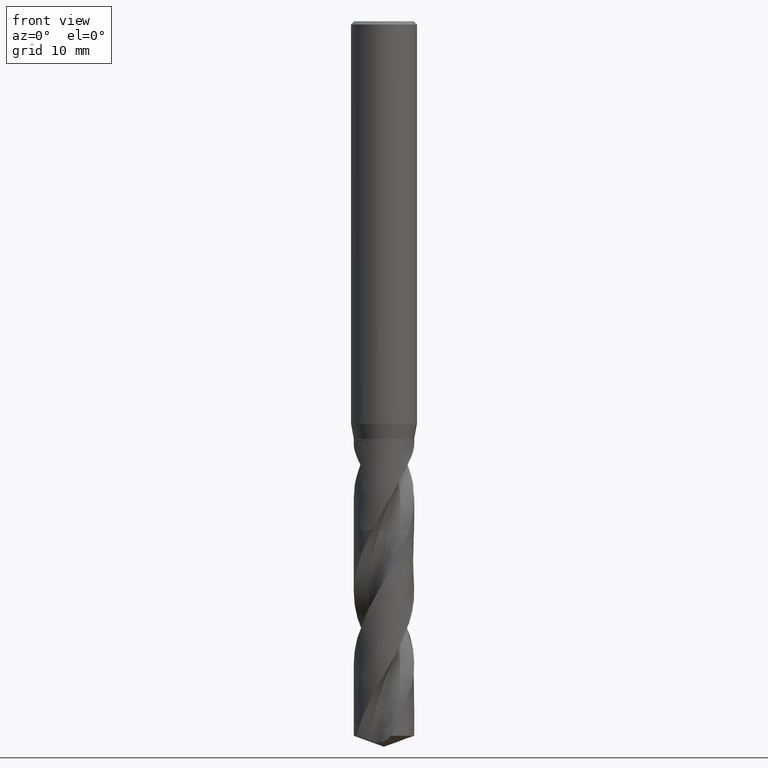
[diagram: clean part render]
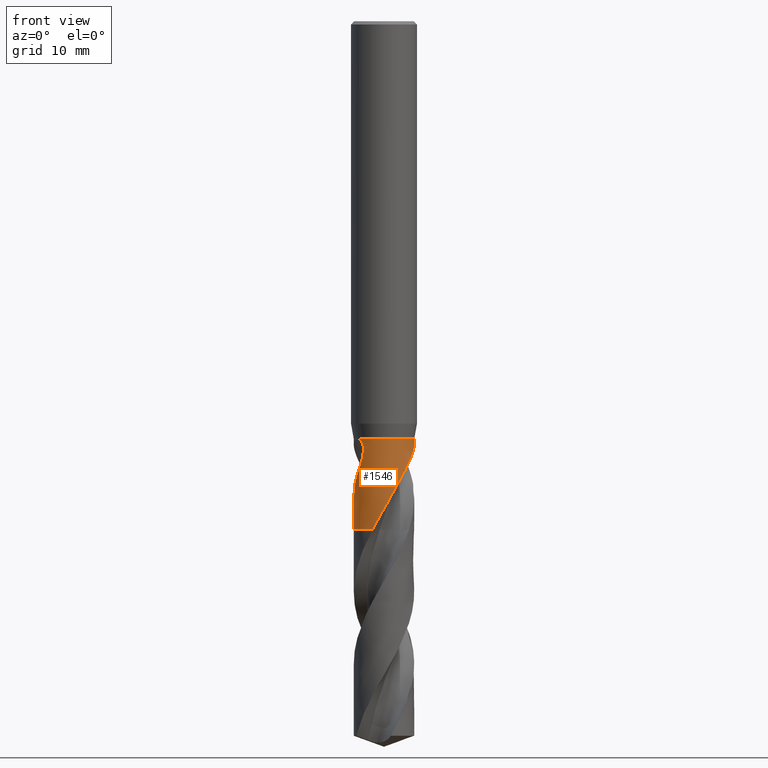
[diagram: same view with one face highlighted and labeled with its STEP entity id]
A machine part, front view. The second image highlights one B-rep face of the part: STEP entity #1546.
In plain terms, the highlighted face is a freeform B-spline surface patch.
Its self-contained STEP definition (entity closure, byte-faithful):
#100 = VERTEX_POINT('', #101);
#101 = CARTESIAN_POINT('', (-2.40600145273723, -1.33178714869394, -38.));
#108 = EDGE_CURVE('', #109, #100, #111, .T.);
#109 = VERTEX_POINT('', #110);
#110 = CARTESIAN_POINT('', (2.40712918948739, 1.32974774491923, -38.));
#111 = CIRCLE('', #112, 2.75);
#112 = AXIS2_PLACEMENT_3D('', #113, #114, #115);
#113 = CARTESIAN_POINT('', (1.42477179352876E-31, 2.32682891837997E-15, -38.));
#114 = DIRECTION('', (3.74939945665464E-33, 6.12323399573677E-17, -1.));
#115 = DIRECTION('', (-1., 6.12323399573677E-17, 0.));
#243 = VERTEX_POINT('', #244);
#244 = CARTESIAN_POINT('', (-1.05550709627514, -2.53937093976301, -46.25));
#253 = VERTEX_POINT('', #254);
#254 = CARTESIAN_POINT('', (2.47878726190339, -1.19084579615728, -39.6273334895994));
#274 = EDGE_CURVE('', #253, #243, #275, .T.);
#275 = B_SPLINE_CURVE_WITH_KNOTS('', 3, (#276, #277, #278, #279, #280, #281, #282, #283, #284, #285, #286, #287, #288, #289, #290, #291, #292, #293, #294, #295, #296, #297, #298, #299, #300, #301, #302, #303, #304, #305, #306, #307, #308, #309, #310, #311, #312, #313, #314, #315, #316, #317, #318, #319, #320, #321, #322, #323, #324, #325, #326, #327, #328, #329, #330, #331, #332, #333, #334, #335, #336, #337, #338, #339, #340, #341, #342, #343, #344, #345, #346, #347, #348, #349, #350, #351, #352, #353, #354, #355, #356, #357, #358, #359, #360, #361, #362, #363, #364, #365, #366, #367, #368, #369, #370, #371, #372, #373, #374, #375), .UNSPECIFIED., .F., .U., (4, 3, 3, 3, 3, 3, 3, 3, 3, 3, 3, 3, 3, 3, 3, 3, 3, 3, 3, 3, 3, 3, 3, 3, 3, 3, 3, 3, 3, 3, 3, 3, 3, 4), (0., 0.294646179620459, 0.5893281033305, 0.884064015673032, 1.08077443888283, 1.27750631946061, 1.47426348966996, 1.6710477572922, 1.86785864966025, 2.06470052430384, 2.26157648198172, 2.45848407721986, 2.90147659964114, 3.0984374404828, 3.39397098716808, 3.59102654895382, 3.64940946053369, 3.84641075014723, 4.04332256088424, 4.17463089716204, 4.26219386195075, 4.55754745343562, 4.85280568008738, 5.29528251079092, 5.49216558586102, 5.62345710434785, 5.71101898535953, 6.00695136735754, 6.30287083917325, 6.59878569234035, 7.04279964419793, 7.23996763650558, 7.68385139963845, 7.84112753567191), .UNSPECIFIED.);
#276 = CARTESIAN_POINT('', (2.47878726190339, -1.19084579615728, -39.6273334895994));
#277 = CARTESIAN_POINT('', (2.45133353819424, -1.2479916842661, -39.702346181789));
#278 = CARTESIAN_POINT('', (2.42211017381333, -1.30375469504955, -39.7777975357789));
#279 = CARTESIAN_POINT('', (2.39129458783208, -1.35801700806918, -39.8536412204808));
#280 = CARTESIAN_POINT('', (2.36047526355338, -1.4122859037534, -39.9294941059246));
#281 = CARTESIAN_POINT('', (2.3280476475544, -1.46508106056704, -40.0057786633265));
#282 = CARTESIAN_POINT('', (2.29420012026508, -1.51629344395332, -40.0824613908617));
#283 = CARTESIAN_POINT('', (2.26034639177519, -1.56751520995293, -40.1591581674283));
#284 = CARTESIAN_POINT('', (2.22505451845852, -1.6171813147806, -40.2362876595723));
#285 = CARTESIAN_POINT('', (2.18850614202678, -1.66521496099186, -40.3138062044009));
#286 = CARTESIAN_POINT('', (2.16411329984349, -1.69727321544558, -40.3655430478641));
#287 = CARTESIAN_POINT('', (2.13915468770585, -1.72861279621764, -40.4174665502551));
#288 = CARTESIAN_POINT('', (2.11368655211912, -1.75921265326019, -40.4695670897786));
#289 = CARTESIAN_POINT('', (2.08821563844291, -1.7898158481655, -40.5216733124806));
#290 = CARTESIAN_POINT('', (2.06223084612261, -1.81968429391645, -40.5739675978772));
#291 = CARTESIAN_POINT('', (2.03578840372509, -1.84880111836251, -40.6264403450934));
#292 = CARTESIAN_POINT('', (2.00934256218542, -1.8779216857391, -40.6789198376142));
#293 = CARTESIAN_POINT('', (1.98243329099132, -1.90629675126679, -40.731586812998));
#294 = CARTESIAN_POINT('', (1.95511475169292, -1.93391476226662, -40.7844302609677));
#295 = CARTESIAN_POINT('', (1.92779245008314, -1.96153657682108, -40.8372809865411));
#296 = CARTESIAN_POINT('', (1.90005579573971, -1.98840612054342, -40.8903176722564));
#297 = CARTESIAN_POINT('', (1.87196053799623, -2.01451327724214, -40.9435318137943));
#298 = CARTESIAN_POINT('', (1.84386147898802, -2.0406239662172, -40.9967531551608));
#299 = CARTESIAN_POINT('', (1.81539928826369, -2.06597616557126, -41.0501615856782));
#300 = CARTESIAN_POINT('', (1.78663087353134, -2.09056215448014, -41.103750239663));
#301 = CARTESIAN_POINT('', (1.75785793003058, -2.11515201375347, -41.1573473296568));
#302 = CARTESIAN_POINT('', (1.72877279800032, -2.13898058458756, -41.2111324248215));
#303 = CARTESIAN_POINT('', (1.69942609299599, -2.16204786127514, -41.2650941071914));
#304 = CARTESIAN_POINT('', (1.67007430663001, -2.1851191320457, -41.3190651329892));
#305 = CARTESIAN_POINT('', (1.64045612797633, -2.20743252812588, -41.3732212683461));
#306 = CARTESIAN_POINT('', (1.61062342211332, -2.22898905159716, -41.4275536572153));
#307 = CARTESIAN_POINT('', (1.58078592219602, -2.25054903915729, -41.4818947771873));
#308 = CARTESIAN_POINT('', (1.55072923976134, -2.27135516861363, -41.5364203857998));
#309 = CARTESIAN_POINT('', (1.5205080498933, -2.29140901416786, -41.5911249536727));
#310 = CARTESIAN_POINT('', (1.4525179801653, -2.33652511858005, -41.7141964607961));
#311 = CARTESIAN_POINT('', (1.38366242077699, -2.3778503633965, -41.8382383663114));
#312 = CARTESIAN_POINT('', (1.3145340489309, -2.4154710170485, -41.9631810049472));
#313 = CARTESIAN_POINT('', (1.28379858150044, -2.43219770023451, -42.0187322973893));
#314 = CARTESIAN_POINT('', (1.25300339380621, -2.44819633865403, -42.0744746418809));
#315 = CARTESIAN_POINT('', (1.22219454590112, -2.4634813764203, -42.1303994082354));
#316 = CARTESIAN_POINT('', (1.1759668386484, -2.48641609482921, -42.214312761152));
#317 = CARTESIAN_POINT('', (1.12968600712294, -2.50775526395312, -42.2986478246166));
#318 = CARTESIAN_POINT('', (1.08348342342643, -2.52756081453249, -42.3833680373763));
#319 = CARTESIAN_POINT('', (1.05267651101874, -2.54076673967928, -42.4398576958507));
#320 = CARTESIAN_POINT('', (1.02190078296072, -2.55329218545324, -42.4965277512451));
#321 = CARTESIAN_POINT('', (0.991215321501755, -2.56514954465045, -42.5533815049782));
#322 = CARTESIAN_POINT('', (0.982123943583204, -2.5686626002948, -42.5702259302109));
#323 = CARTESIAN_POINT('', (0.973040465917248, -2.57211705012839, -42.5870869541854));
#324 = CARTESIAN_POINT('', (0.963966658082637, -2.57551320751903, -42.6039647946929));
#325 = CARTESIAN_POINT('', (0.933348934561292, -2.58697285157553, -42.6609156430815));
#326 = CARTESIAN_POINT('', (0.902847179063501, -2.5977671889223, -42.7180664617656));
#327 = CARTESIAN_POINT('', (0.872449997292269, -2.6079361576206, -42.7753793833775));
#328 = CARTESIAN_POINT('', (0.842066622058444, -2.61810050752733, -42.8326662732012));
#329 = CARTESIAN_POINT('', (0.811785379619613, -2.6276422520204, -42.8901204817552));
#330 = CARTESIAN_POINT('', (0.781476823060804, -2.63662549009502, -42.9476439037528));
#331 = CARTESIAN_POINT('', (0.761265916859581, -2.64261585726269, -42.9860027244414));
#332 = CARTESIAN_POINT('', (0.741039398116858, -2.6483586451501, -43.0243927175291));
#333 = CARTESIAN_POINT('', (0.720729772775226, -2.65387426127075, -43.0627705946224));
#334 = CARTESIAN_POINT('', (0.707186299001413, -2.65755234991196, -43.0883628821788));
#335 = CARTESIAN_POINT('', (0.693601330081946, -2.66113044552354, -43.1139478245285));
#336 = CARTESIAN_POINT('', (0.679965175950064, -2.66461017026791, -43.1395186285143));
#337 = CARTESIAN_POINT('', (0.633969850110986, -2.67634742931466, -43.2257700341468));
#338 = CARTESIAN_POINT('', (0.587425212933658, -2.68695438702298, -43.3118915526095));
#339 = CARTESIAN_POINT('', (0.540481474457172, -2.69636417714088, -43.3979170109945));
#340 = CARTESIAN_POINT('', (0.493552893344316, -2.70577092899179, -43.4839146931691));
#341 = CARTESIAN_POINT('', (0.44622080787075, -2.71398235334575, -43.5698322153079));
#342 = CARTESIAN_POINT('', (0.398632818811385, -2.72095422154921, -43.6556993009467));
#343 = CARTESIAN_POINT('', (0.32731699869919, -2.73140233058832, -43.7843805449752));
#344 = CARTESIAN_POINT('', (0.255379816124576, -2.73907775394623, -43.9129749858926));
#345 = CARTESIAN_POINT('', (0.182974840040113, -2.74390601295169, -44.0413812906392));
#346 = CARTESIAN_POINT('', (0.150757753511039, -2.74605437963276, -44.0985165492169));
#347 = CARTESIAN_POINT('', (0.118441092479314, -2.74763938535918, -44.1556197603605));
#348 = CARTESIAN_POINT('', (0.0860457855020237, -2.74865351086624, -44.2126855956025));
#349 = CARTESIAN_POINT('', (0.0644429684829302, -2.74932978066603, -44.2507399593916));
#350 = CARTESIAN_POINT('', (0.0428051451983941, -2.74975217983722, -44.2887798332414));
#351 = CARTESIAN_POINT('', (0.0211417374388629, -2.74991873096971, -44.3268053861284));
#352 = CARTESIAN_POINT('', (0.00669382218577182, -2.75002980844534, -44.3521656605443));
#353 = CARTESIAN_POINT('', (-0.0077657311852978, -2.75002709721036, -44.3775200625263));
#354 = CARTESIAN_POINT('', (-0.0222339130953221, -2.7499101172781, -44.4028687536114));
#355 = CARTESIAN_POINT('', (-0.071131943680607, -2.74951476087873, -44.4885395780233));
#356 = CARTESIAN_POINT('', (-0.120134812102032, -2.74781292626648, -44.5741546261072));
#357 = CARTESIAN_POINT('', (-0.169115861636983, -2.74479504250186, -44.6597257253245));
#358 = CARTESIAN_POINT('', (-0.218094774351779, -2.74177729039376, -44.7452930914644));
#359 = CARTESIAN_POINT('', (-0.267069518912298, -2.73744285380394, -44.8308265926306));
#360 = CARTESIAN_POINT('', (-0.315932307065398, -2.73179186201151, -44.9163269381989));
#361 = CARTESIAN_POINT('', (-0.364794332578421, -2.72614095841857, -45.0018259492958));
#362 = CARTESIAN_POINT('', (-0.413551169920283, -2.71917182391132, -45.0873081271065));
#363 = CARTESIAN_POINT('', (-0.462045121006855, -2.7109065469237, -45.1728039343227));
#364 = CARTESIAN_POINT('', (-0.534809264586287, -2.69850467436071, -45.3010885770941));
#365 = CARTESIAN_POINT('', (-0.60701506565803, -2.68318248460697, -45.429441812705));
#366 = CARTESIAN_POINT('', (-0.67846216396311, -2.66499326304414, -45.5577766909246));
#367 = CARTESIAN_POINT('', (-0.710188826762974, -2.65691619185713, -45.614764833247));
#368 = CARTESIAN_POINT('', (-0.741772257792791, -2.64827227028457, -45.67175537486));
#369 = CARTESIAN_POINT('', (-0.773194360132523, -2.63906621392099, -45.7287410624273));
#370 = CARTESIAN_POINT('', (-0.8439348533985, -2.61834064434728, -45.8570327853689));
#371 = CARTESIAN_POINT('', (-0.913871662725542, -2.59475888288514, -45.9853404579179));
#372 = CARTESIAN_POINT('', (-0.982726600119576, -2.56841360170387, -46.1136270766781));
#373 = CARTESIAN_POINT('', (-1.00712316381393, -2.55907898671894, -46.1590813721023));
#374 = CARTESIAN_POINT('', (-1.03138930245319, -2.54939566759106, -46.2045438982902));
#375 = CARTESIAN_POINT('', (-1.05550709627514, -2.53937093976301, -46.25));
#638 = EDGE_CURVE('', #109, #253, #639, .T.);
#639 = B_SPLINE_CURVE_WITH_KNOTS('', 3, (#640, #641, #642, #643, #644, #645, #646, #647, #648, #649, #650, #651, #652, #653, #654, #655, #656, #657, #658, #659, #660, #661, #662, #663, #664, #665, #666, #667, #668, #669, #670, #671, #672, #673, #674, #675, #676, #677, #678, #679, #680, #681, #682, #683, #684, #685, #686, #687, #688, #689, #690, #691), .UNSPECIFIED., .F., .U., (4, 3, 3, 3, 3, 3, 3, 3, 3, 3, 3, 3, 3, 3, 3, 3, 3, 4), (0., 0.13135321642111, 0.262332577943431, 0.39304379799278, 0.523565458098617, 0.653954081950346, 0.784249983605275, 0.914482018248114, 1.10890731216088, 1.30324590456421, 1.49754917675076, 1.52347185146659, 1.81670441739445, 2.10960066142162, 2.4022995946186, 2.69491818076316, 2.98755392781241, 3.16281078751133), .UNSPECIFIED.);
#640 = CARTESIAN_POINT('', (2.40712918948718, 1.32974774491962, -38.));
#641 = CARTESIAN_POINT('', (2.42830089484273, 1.29142240829298, -38.0000403420171));
#642 = CARTESIAN_POINT('', (2.44857743665481, 1.25254459905025, -38.0023510363986));
#643 = CARTESIAN_POINT('', (2.46780817231705, 1.21343430998353, -38.0065508289759));
#644 = CARTESIAN_POINT('', (2.48698417384387, 1.17443533583972, -38.0107386681875));
#645 = CARTESIAN_POINT('', (2.50517058916205, 1.13510706994908, -38.0168140591301));
#646 = CARTESIAN_POINT('', (2.52229722122961, 1.09568094250898, -38.0244584011677));
#647 = CARTESIAN_POINT('', (2.53938879158749, 1.05633552839472, -38.0320870936777));
#648 = CARTESIAN_POINT('', (2.5554591350213, 1.01681671436771, -38.0412928169993));
#649 = CARTESIAN_POINT('', (2.57048471993135, 0.977296426167344, -38.0518170251502));
#650 = CARTESIAN_POINT('', (2.58548851444708, 0.93783345105453, -38.0623259708905));
#651 = CARTESIAN_POINT('', (2.599474157071, 0.898308945764079, -38.0741657350299));
#652 = CARTESIAN_POINT('', (2.61244485888886, 0.858854969866947, -38.0871280988367));
#653 = CARTESIAN_POINT('', (2.62540234011498, 0.819441208055039, -38.1000772505503));
#654 = CARTESIAN_POINT('', (2.63736338705272, 0.780049203757732, -38.1141629480976));
#655 = CARTESIAN_POINT('', (2.6483465144043, 0.740783868373642, -38.1292170445749));
#656 = CARTESIAN_POINT('', (2.65932183141425, 0.701546455426705, -38.1442604357556));
#657 = CARTESIAN_POINT('', (2.66933215407905, 0.662395292506213, -38.160286524741));
#658 = CARTESIAN_POINT('', (2.67840476554437, 0.623416323101335, -38.1771584968185));
#659 = CARTESIAN_POINT('', (2.68747292989679, 0.584456459978993, -38.1940221987783));
#660 = CARTESIAN_POINT('', (2.69561237720731, 0.545634688129462, -38.2117458519895));
#661 = CARTESIAN_POINT('', (2.70285541157768, 0.507023297401362, -38.2302170712827));
#662 = CARTESIAN_POINT('', (2.71366864267049, 0.44937979201285, -38.2577930225442));
#663 = CARTESIAN_POINT('', (2.72249780900136, 0.392128135618561, -38.2870703978444));
#664 = CARTESIAN_POINT('', (2.729461631967, 0.335468626878963, -38.3177516300101));
#665 = CARTESIAN_POINT('', (2.73642234950355, 0.278834384733195, -38.3484191802671));
#666 = CARTESIAN_POINT('', (2.74152962004551, 0.222712368063331, -38.380533173982));
#667 = CARTESIAN_POINT('', (2.74490825087018, 0.167268330250618, -38.4138638075732));
#668 = CARTESIAN_POINT('', (2.74828626764299, 0.111834369157151, -38.4471883834627));
#669 = CARTESIAN_POINT('', (2.74994055960445, 0.0570123024451126, -38.4817693005826));
#670 = CARTESIAN_POINT('', (2.74999842513964, 0.00294308163230927, -38.5174256942634));
#671 = CARTESIAN_POINT('', (2.75000614518177, -0.0042704809983954, -38.5221827376447));
#672 = CARTESIAN_POINT('', (2.74998546821962, -0.0114712588604696, -38.526959353573));
#673 = CARTESIAN_POINT('', (2.74993669814446, -0.0186589441920607, -38.5317551651009));
#674 = CARTESIAN_POINT('', (2.7493850199539, -0.0999647290298264, -38.5860045099494));
#675 = CARTESIAN_POINT('', (2.74523398812198, -0.179681946607736, -38.6427634337158));
#676 = CARTESIAN_POINT('', (2.73792612061344, -0.257411262501564, -38.7015739339395));
#677 = CARTESIAN_POINT('', (2.73062663483386, -0.335051427072182, -38.7603169816988));
#678 = CARTESIAN_POINT('', (2.72016413865531, -0.410857405806564, -38.821221218522));
#679 = CARTESIAN_POINT('', (2.70698376382058, -0.484498609298089, -38.883952982205));
#680 = CARTESIAN_POINT('', (2.69381226800275, -0.558090204072215, -38.9466424863623));
#681 = CARTESIAN_POINT('', (2.67790570161879, -0.629638695886798, -39.0112617683629));
#682 = CARTESIAN_POINT('', (2.65971451738191, -0.698869577265965, -39.0775592112585));
#683 = CARTESIAN_POINT('', (2.64152832669939, -0.768081454485483, -39.1438384552352));
#684 = CARTESIAN_POINT('', (2.62103315896364, -0.835077615288518, -39.2118857965237));
#685 = CARTESIAN_POINT('', (2.59867820020313, -0.899650827704289, -39.2814883519297));
#686 = CARTESIAN_POINT('', (2.57632193041409, -0.964227827079593, -39.351094989246));
#687 = CARTESIAN_POINT('', (2.55207821913894, -1.02646179430777, -39.4223439208319));
#688 = CARTESIAN_POINT('', (2.52639837668395, -1.08619116286622, -39.4950627205248));
#689 = CARTESIAN_POINT('', (2.51101895502545, -1.12196253280617, -39.5386133414033));
#690 = CARTESIAN_POINT('', (2.49511685901714, -1.15685516743928, -39.5827156062532));
#691 = CARTESIAN_POINT('', (2.47878726190339, -1.19084579615728, -39.6273334895994));
#966 = VERTEX_POINT('', #967);
#967 = CARTESIAN_POINT('', (-2.75, 2.82469632098821E-15, -43.3807917181488));
#1004 = EDGE_CURVE('', #1005, #966, #1007, .T.);
#1005 = VERTEX_POINT('', #1006);
#1006 = CARTESIAN_POINT('', (-2.74998850560855, -0.00795103897642847, -43.3661641474606));
#1007 = CIRCLE('', #1008, 11.5672351786632);
#1008 = AXIS2_PLACEMENT_3D('', #1009, #1010, #1011);
#1009 = CARTESIAN_POINT('', (8.34157615700956, 2.88407088377187, -41.8123519929503));
#1010 = DIRECTION('', (0.283815993542771, -0.842369981229927, -0.458106206607182));
#1011 = DIRECTION('', (-0.95887776908782, -0.250018425153677, -0.13432874239284));
#1014 = VERTEX_POINT('', #1015);
#1015 = CARTESIAN_POINT('', (-2.65298182283901, -0.724007905817211, -42.0981379999012));
#1024 = EDGE_CURVE('', #100, #1014, #1025, .T.);
#1025 = B_SPLINE_CURVE_WITH_KNOTS('', 3, (#1026, #1027, #1028, #1029, #1030, #1031, #1032, #1033, #1034, #1035, #1036, #1037, #1038, #1039, #1040, #1041, #1042, #1043, #1044, #1045, #1046, #1047, #1048, #1049, #1050, #1051, #1052, #1053, #1054, #1055, #1056, #1057, #1058, #1059, #1060, #1061, #1062, #1063, #1064, #1065, #1066, #1067, #1068, #1069, #1070, #1071, #1072, #1073, #1074, #1075, #1076, #1077, #1078, #1079, #1080, #1081, #1082, #1083, #1084, #1085, #1086, #1087, #1088, #1089, #1090, #1091, #1092, #1093, #1094, #1095, #1096, #1097, #1098, #1099, #1100, #1101, #1102, #1103, #1104, #1105, #1106, #1107, #1108, #1109, #1110, #1111, #1112, #1113, #1114, #1115, #1116, #1117, #1118, #1119, #1120, #1121, #1122, #1123, #1124, #1125, #1126, #1127, #1128, #1129, #1130, #1131), .UNSPECIFIED., .F., .U., (4, 3, 3, 3, 3, 3, 3, 3, 3, 3, 3, 3, 3, 3, 3, 3, 3, 3, 3, 3, 3, 3, 3, 3, 3, 3, 3, 3, 3, 3, 3, 3, 3, 3, 3, 4), (0., 0.131708083809637, 0.263053208565101, 0.350370890140784, 0.437542461771235, 0.524578541917436, 0.611508490578419, 0.698378734034386, 0.785244152149952, 0.872155804768198, 0.959151137807858, 1.04625053020302, 1.13345945731366, 1.19171836652996, 1.21764661614251, 1.3487479882837, 1.48005653763588, 1.61152716063544, 1.7431187547193, 1.87479782665918, 2.07271859928761, 2.27074270171345, 2.4688015482456, 2.66684405161748, 2.86483811871395, 3.06276163340528, 3.26059605299441, 3.4583325021765, 3.65596616288968, 3.85349381375294, 4.05092283673963, 4.24825936058938, 4.44550830775747, 4.64266960864983, 4.8397555070027, 5.00300741448592), .UNSPECIFIED.);
#1026 = CARTESIAN_POINT('', (-2.40600145273196, -1.33178714870347, -38.));
#1027 = CARTESIAN_POINT('', (-2.38473999106095, -1.37019802218086, -38.0000404936975));
#1028 = CARTESIAN_POINT('', (-2.36250618834058, -1.40817841650778, -38.0023751273345));
#1029 = CARTESIAN_POINT('', (-2.33958599205363, -1.44528107501152, -38.0074252686737));
#1030 = CARTESIAN_POINT('', (-2.31672895888108, -1.48228148659579, -38.0124614929132));
#1031 = CARTESIAN_POINT('', (-2.29308329172615, -1.5185741854298, -38.0202303428043));
#1032 = CARTESIAN_POINT('', (-2.26912491270285, -1.55356754940083, -38.0311068555733));
#1033 = CARTESIAN_POINT('', (-2.2531974839953, -1.57683098927476, -38.0383375151078));
#1034 = CARTESIAN_POINT('', (-2.23708601791918, -1.59959106997599, -38.046962542225));
#1035 = CARTESIAN_POINT('', (-2.22098588960495, -1.62164166145782, -38.0570476967043));
#1036 = CARTESIAN_POINT('', (-2.20491270186936, -1.64365535536455, -38.0671159755482));
#1037 = CARTESIAN_POINT('', (-2.18880221661478, -1.66502823058925, -38.0786725541052));
#1038 = CARTESIAN_POINT('', (-2.17288796207405, -1.68554380075798, -38.0917174077014));
#1039 = CARTESIAN_POINT('', (-2.15699844318887, -1.70602748340879, -38.1047419855753));
#1040 = CARTESIAN_POINT('', (-2.14125098393298, -1.72572592772956, -38.1192968584564));
#1041 = CARTESIAN_POINT('', (-2.12589845836038, -1.74443565222135, -38.1352951040514));
#1042 = CARTESIAN_POINT('', (-2.11056465360262, -1.76312256214194, -38.1512738414429));
#1043 = CARTESIAN_POINT('', (-2.09556963245628, -1.78089138830191, -38.1687519684729));
#1044 = CARTESIAN_POINT('', (-2.08115603865162, -1.79757880015978, -38.1875515647046));
#1045 = CARTESIAN_POINT('', (-2.06675234438775, -1.81425475077373, -38.2063382490025));
#1046 = CARTESIAN_POINT('', (-2.05287647262533, -1.82991321353226, -38.2265138746095));
#1047 = CARTESIAN_POINT('', (-2.03973020710507, -1.84445132281205, -38.2478284781872));
#1048 = CARTESIAN_POINT('', (-2.02658467181421, -1.85898862455035, -38.2691418978126));
#1049 = CARTESIAN_POINT('', (-2.01412192405766, -1.87245860714067, -38.2916683181869));
#1050 = CARTESIAN_POINT('', (-2.00248318551629, -1.88482388878232, -38.3151212427621));
#1051 = CARTESIAN_POINT('', (-1.9908382522049, -1.89719575189978, -38.3385866502601));
#1052 = CARTESIAN_POINT('', (-1.97997999326923, -1.90850318204405, -38.3630531845789));
#1053 = CARTESIAN_POINT('', (-1.96998585347486, -1.91876411711, -38.388234987517));
#1054 = CARTESIAN_POINT('', (-1.95998209110625, -1.92903493162647, -38.4134410360404));
#1055 = CARTESIAN_POINT('', (-1.95081517720607, -1.93828735085997, -38.4394323046897));
#1056 = CARTESIAN_POINT('', (-1.94250860725891, -1.94657656174244, -38.4659502166207));
#1057 = CARTESIAN_POINT('', (-1.93419210141882, -1.95487568775383, -38.4924998479179));
#1058 = CARTESIAN_POINT('', (-1.92671757902318, -1.96222975135728, -38.5196380331105));
#1059 = CARTESIAN_POINT('', (-1.92006990135007, -1.96871317716155, -38.5471461456475));
#1060 = CARTESIAN_POINT('', (-1.9134138636705, -1.97520475641192, -38.5746888519194));
#1061 = CARTESIAN_POINT('', (-1.90757323630865, -1.98083657544398, -38.6026540845499));
#1062 = CARTESIAN_POINT('', (-1.9025089402649, -1.98568872994035, -38.6308649620594));
#1063 = CARTESIAN_POINT('', (-1.89912579620807, -1.9889301553044, -38.6497109105901));
#1064 = CARTESIAN_POINT('', (-1.89608557969617, -1.99182666431436, -38.6686835046804));
#1065 = CARTESIAN_POINT('', (-1.89337332884883, -1.99440152366669, -38.6877396342133));
#1066 = CARTESIAN_POINT('', (-1.89216623592643, -1.99554747021636, -38.6962206045889));
#1067 = CARTESIAN_POINT('', (-1.89102383139944, -1.99662992964189, -38.7047198322241));
#1068 = CARTESIAN_POINT('', (-1.88994469950971, -1.99765087860595, -38.7132339536061));
#1069 = CARTESIAN_POINT('', (-1.88448826980162, -2.00281311717101, -38.7562840249544));
#1070 = CARTESIAN_POINT('', (-1.88064383825553, -2.00641216595986, -38.7997690992903));
#1071 = CARTESIAN_POINT('', (-1.87821840878624, -2.00868006633622, -38.8433432188457));
#1072 = CARTESIAN_POINT('', (-1.87578914645307, -2.01095155063598, -38.886986197822));
#1073 = CARTESIAN_POINT('', (-1.87477680747781, -2.01189264325305, -38.930808987314));
#1074 = CARTESIAN_POINT('', (-1.87499112355159, -2.01169289072729, -38.9745775232489));
#1075 = CARTESIAN_POINT('', (-1.87520570415489, -2.01149289164775, -39.0184000825226));
#1076 = CARTESIAN_POINT('', (-1.87664956904453, -2.01014877459412, -39.0622352667424));
#1077 = CARTESIAN_POINT('', (-1.87914704690848, -2.00781133976655, -39.1059251024998));
#1078 = CARTESIAN_POINT('', (-1.88164682279611, -2.00547175417693, -39.1496551389248));
#1079 = CARTESIAN_POINT('', (-1.88520474416004, -2.00213405481275, -39.1932897763369));
#1080 = CARTESIAN_POINT('', (-1.88966561682071, -1.99791487721715, -39.2367217666375));
#1081 = CARTESIAN_POINT('', (-1.89412945492593, -1.99369289484809, -39.2801826291272));
#1082 = CARTESIAN_POINT('', (-1.89950138443785, -1.98858419479108, -39.3234787515568));
#1083 = CARTESIAN_POINT('', (-1.90564488336907, -1.98267939377229, -39.3665367159758));
#1084 = CARTESIAN_POINT('', (-1.91487889479699, -1.97380415822697, -39.431255167132));
#1085 = CARTESIAN_POINT('', (-1.92586509669763, -1.96312153546715, -39.4955114241235));
#1086 = CARTESIAN_POINT('', (-1.93820412208313, -1.9508625736171, -39.559150885152));
#1087 = CARTESIAN_POINT('', (-1.95054958938463, -1.93859721165034, -39.6228235708517));
#1088 = CARTESIAN_POINT('', (-1.96426327364333, -1.9247391530685, -39.6859512059498));
#1089 = CARTESIAN_POINT('', (-1.9790092227479, -1.90945607340906, -39.7484495661876));
#1090 = CARTESIAN_POINT('', (-1.99375775908713, -1.89417031227329, -39.8109588920081));
#1091 = CARTESIAN_POINT('', (-2.00955189893642, -1.87744515935893, -39.8728905993607));
#1092 = CARTESIAN_POINT('', (-2.02610252387402, -1.8594108106471, -39.9342047797181));
#1093 = CARTESIAN_POINT('', (-2.04265178310885, -1.84137795007002, -39.9955139006323));
#1094 = CARTESIAN_POINT('', (-2.05996767463906, -1.82202466741484, -40.0562444005281));
#1095 = CARTESIAN_POINT('', (-2.07779622865429, -1.80146130466075, -40.1163872398613));
#1096 = CARTESIAN_POINT('', (-2.09562042224819, -1.78090297119425, -40.1765153697504));
#1097 = CARTESIAN_POINT('', (-2.11396652361876, -1.75912415315354, -40.2360850991444));
#1098 = CARTESIAN_POINT('', (-2.13261281819624, -1.73622077157978, -40.2951061950947));
#1099 = CARTESIAN_POINT('', (-2.15125246842852, -1.71332555130437, -40.3541062597063));
#1100 = CARTESIAN_POINT('', (-2.17019958369823, -1.68929726443188, -40.4125807148414));
#1101 = CARTESIAN_POINT('', (-2.18925519134047, -1.66423006438076, -40.4705561803023));
#1102 = CARTESIAN_POINT('', (-2.2083022211171, -1.63917414830847, -40.5285055481565));
#1103 = CARTESIAN_POINT('', (-2.22746306858417, -1.61307304454563, -40.5859749407154));
#1104 = CARTESIAN_POINT('', (-2.24655963222956, -1.58602327184581, -40.6430043065024));
#1105 = CARTESIAN_POINT('', (-2.26564673898613, -1.55898689457662, -40.7000054305396));
#1106 = CARTESIAN_POINT('', (-2.28467499536714, -1.53099519361639, -40.7565811193996));
#1107 = CARTESIAN_POINT('', (-2.30348736913739, -1.50214711004762, -40.8127798217798));
#1108 = CARTESIAN_POINT('', (-2.32228996375409, -1.47331402245128, -40.8689493106357));
#1109 = CARTESIAN_POINT('', (-2.34088100635595, -1.44361903777056, -40.924754074502));
#1110 = CARTESIAN_POINT('', (-2.35912057982805, -1.41317022677088, -40.9802525776462));
#1111 = CARTESIAN_POINT('', (-2.37735036967099, -1.38273774838312, -41.0357213116309));
#1112 = CARTESIAN_POINT('', (-2.39523159678426, -1.35154801090385, -41.0908952173276));
#1113 = CARTESIAN_POINT('', (-2.41264350894681, -1.31971637056483, -41.1458389468749));
#1114 = CARTESIAN_POINT('', (-2.43004672713707, -1.28790062413779, -41.2007552423726));
#1115 = CARTESIAN_POINT('', (-2.44698457175801, -1.25543728338328, -41.2554493994233));
#1116 = CARTESIAN_POINT('', (-2.46335539225005, -1.22244844941324, -41.3099897175833));
#1117 = CARTESIAN_POINT('', (-2.47971854271088, -1.18947507132009, -41.3645044825987));
#1118 = CARTESIAN_POINT('', (-2.49551752195501, -1.1559717998463, -41.4188733228661));
#1119 = CARTESIAN_POINT('', (-2.51066684479978, -1.12207486132785, -41.4731720478694));
#1120 = CARTESIAN_POINT('', (-2.52580944447239, -1.08819296605298, -41.5274466754474));
#1121 = CARTESIAN_POINT('', (-2.54030463884976, -1.05391379901133, -41.5816590974896));
#1122 = CARTESIAN_POINT('', (-2.55408477188615, -1.01938755045442, -41.6358906606708));
#1123 = CARTESIAN_POINT('', (-2.56785878181082, -0.984876643409568, -41.6900981264127));
#1124 = CARTESIAN_POINT('', (-2.58092035012943, -0.950114135456803, -41.7443318267708));
#1125 = CARTESIAN_POINT('', (-2.59322441619638, -0.915252493710302, -41.7986682904906));
#1126 = CARTESIAN_POINT('', (-2.6055237766856, -0.880404184480409, -41.852983973726));
#1127 = CARTESIAN_POINT('', (-2.61706793561636, -0.845452168544273, -41.90740995174));
#1128 = CARTESIAN_POINT('', (-2.62783302105934, -0.810551425530877, -41.9620169425239));
#1129 = CARTESIAN_POINT('', (-2.63675005037231, -0.781642138173762, -42.0072494806298));
#1130 = CARTESIAN_POINT('', (-2.64513391015079, -0.752765008525301, -42.0526112811413));
#1131 = CARTESIAN_POINT('', (-2.65298182283901, -0.724007905817208, -42.0981379999012));
#1278 = EDGE_CURVE('', #1014, #1005, #1279, .T.);
#1279 = B_SPLINE_CURVE_WITH_KNOTS('', 3, (#1280, #1281, #1282, #1283, #1284, #1285, #1286, #1287, #1288, #1289, #1290, #1291, #1292, #1293, #1294, #1295, #1296, #1297, #1298, #1299, #1300, #1301, #1302, #1303, #1304, #1305, #1306, #1307), .UNSPECIFIED., .F., .U., (4, 3, 3, 3, 3, 3, 3, 3, 3, 4), (0., 0.295321961384353, 0.49231298653335, 0.579877290445274, 0.711206064612262, 0.842501869078483, 0.973784428339948, 1.10507424646123, 1.19262865670091, 1.46109807019893), .UNSPECIFIED.);
#1280 = CARTESIAN_POINT('', (-2.65298182283901, -0.724007905817211, -42.0981379999012));
#1281 = CARTESIAN_POINT('', (-2.66717866135432, -0.671986437238912, -42.1804956279794));
#1282 = CARTESIAN_POINT('', (-2.67955520642753, -0.620603808599091, -42.2635952346312));
#1283 = CARTESIAN_POINT('', (-2.69025763772059, -0.570099853259089, -42.3474127195552));
#1284 = CARTESIAN_POINT('', (-2.69739656806672, -0.536411786547524, -42.4033221825805));
#1285 = CARTESIAN_POINT('', (-2.70379228428025, -0.503107588292598, -42.4595652614793));
#1286 = CARTESIAN_POINT('', (-2.70948972689903, -0.470282276754783, -42.5161493254115));
#1287 = CARTESIAN_POINT('', (-2.71202229200759, -0.455691126963432, -42.5413014569209));
#1288 = CARTESIAN_POINT('', (-2.71441708501078, -0.441194016799613, -42.5665226828747));
#1289 = CARTESIAN_POINT('', (-2.71667828486523, -0.42680100344507, -42.5918144483236));
#1290 = CARTESIAN_POINT('', (-2.72006962804692, -0.40521438976831, -42.6297469893768));
#1291 = CARTESIAN_POINT('', (-2.72316080346337, -0.383862152610051, -42.6678415740963));
#1292 = CARTESIAN_POINT('', (-2.72597401944879, -0.362719788942191, -42.7060704511882));
#1293 = CARTESIAN_POINT('', (-2.72878652918464, -0.341582733002269, -42.7442897310335));
#1294 = CARTESIAN_POINT('', (-2.73132160172547, -0.320654059573628, -42.7826459507369));
#1295 = CARTESIAN_POINT('', (-2.73360045635759, -0.299880884688543, -42.8210995685573));
#1296 = CARTESIAN_POINT('', (-2.73587908109739, -0.27910980541463, -42.8595493071521));
#1297 = CARTESIAN_POINT('', (-2.73790185945251, -0.25849304252881, -42.8980983688224));
#1298 = CARTESIAN_POINT('', (-2.73968617086858, -0.237948912902498, -42.9366958717673));
#1299 = CARTESIAN_POINT('', (-2.74147058094258, -0.217403647352587, -42.9752955088408));
#1300 = CARTESIAN_POINT('', (-2.74301676169076, -0.196930010489305, -43.0139449077778));
#1301 = CARTESIAN_POINT('', (-2.74433523008361, -0.176420364249486, -43.0525821966352));
#1302 = CARTESIAN_POINT('', (-2.74521448884265, -0.162742913808562, -43.0783485895481));
#1303 = CARTESIAN_POINT('', (-2.74599252381008, -0.149044797953572, -43.1041077059887));
#1304 = CARTESIAN_POINT('', (-2.7466694508734, -0.135303095451619, -43.1298460068721));
#1305 = CARTESIAN_POINT('', (-2.74874512257484, -0.0931667050509029, -43.208767748492));
#1306 = CARTESIAN_POINT('', (-2.74986498442552, -0.050672730387949, -43.2875303955802));
#1307 = CARTESIAN_POINT('', (-2.74998850560855, -0.00795103897642847, -43.3661641474606));
#1477 = VERTEX_POINT('', #1478);
#1478 = CARTESIAN_POINT('', (-2.75, 3.00038465791102E-15, -46.25));
#1485 = EDGE_CURVE('', #966, #1477, #1486, .T.);
#1486 = LINE('', #1487, #1488);
#1487 = CARTESIAN_POINT('', (-2.75, 2.82469632098821E-15, -43.3807917181488));
#1488 = VECTOR('', #1489, 2.86920828185121);
#1489 = DIRECTION('', (0., 1.75688336922808E-16, -2.86920828185121));
#1546 = ADVANCED_FACE('', (#1547), #1563, .T.);
#1547 = FACE_OUTER_BOUND('', #1548, .T.);
#1548 = EDGE_LOOP('', (#1549, #1556, #1557, #1558, #1559, #1560, #1561, #1562));
#1549 = ORIENTED_EDGE('', *, *, #1550, .F.);
#1550 = EDGE_CURVE('', #243, #1477, #1551, .T.);
#1551 = CIRCLE('', #1552, 2.75);
#1552 = AXIS2_PLACEMENT_3D('', #1553, #1554, #1555);
#1553 = CARTESIAN_POINT('', (1.73409724870277E-31, 2.83199572302825E-15, -46.25));
#1554 = DIRECTION('', (3.74939945665464E-33, 6.12323399573677E-17, -1.));
#1555 = DIRECTION('', (-1., 6.12323399573677E-17, 0.));
#1556 = ORIENTED_EDGE('', *, *, #274, .F.);
#1557 = ORIENTED_EDGE('', *, *, #638, .F.);
#1558 = ORIENTED_EDGE('', *, *, #108, .T.);
#1559 = ORIENTED_EDGE('', *, *, #1024, .T.);
#1560 = ORIENTED_EDGE('', *, *, #1278, .T.);
#1561 = ORIENTED_EDGE('', *, *, #1004, .T.);
#1562 = ORIENTED_EDGE('', *, *, #1485, .T.);
#1563 = (
   BOUNDED_SURFACE ()
   B_SPLINE_SURFACE (2, 1, ((#1564, #1565), (#1566, #1567), (#1568, #1569), (#1570, #1571), (#1572, #1573), (#1574, #1575), (#1576, #1577), (#1578, #1579), (#1580, #1581)), .UNSPECIFIED., .T., .F., .U.)
   B_SPLINE_SURFACE_WITH_KNOTS ((3, 2, 2, 2, 3), (2, 2), (0., 4.31968989868597, 8.63937979737193, 12.9590696960579, 17.2787595947439), (0., 0.305565946430046), .UNSPECIFIED.)
   GEOMETRIC_REPRESENTATION_ITEM ()
   RATIONAL_B_SPLINE_SURFACE (((1., 1.), (0.707106781186548, 0.707106781186548), (1., 1.), (0.707106781186548, 0.707106781186548), (1., 1.), (0.707106781186548, 0.707106781186548), (1., 1.), (0.707106781186548, 0.707106781186548), (1., 1.)))
   REPRESENTATION_ITEM ('')
   SURFACE ()
);
#1564 = CARTESIAN_POINT('', (-2.75, 2.49521785326273E-15, -38.));
#1565 = CARTESIAN_POINT('', (-2.75, 3.00038465791102E-15, -46.25));
#1566 = CARTESIAN_POINT('', (-2.75, 2.75, -38.));
#1567 = CARTESIAN_POINT('', (-2.75, 2.75, -46.25));
#1568 = CARTESIAN_POINT('', (1.23259516440783E-31, 2.75, -38.));
#1569 = CARTESIAN_POINT('', (1.72563323017096E-31, 2.75, -46.25));
#1570 = CARTESIAN_POINT('', (2.75, 2.75, -38.));
#1571 = CARTESIAN_POINT('', (2.75, 2.75, -46.25));
#1572 = CARTESIAN_POINT('', (2.75, 2.49521785326273E-15, -38.));
#1573 = CARTESIAN_POINT('', (2.75, 3.00038465791102E-15, -46.25));
#1574 = CARTESIAN_POINT('', (2.75, -2.75, -38.));
#1575 = CARTESIAN_POINT('', (2.75, -2.75, -46.25));
#1576 = CARTESIAN_POINT('', (3.36777869765522E-16, -2.75, -38.));
#1577 = CARTESIAN_POINT('', (3.36777869765522E-16, -2.75, -46.25));
#1578 = CARTESIAN_POINT('', (-2.75, -2.75, -38.));
#1579 = CARTESIAN_POINT('', (-2.75, -2.75, -46.25));
#1580 = CARTESIAN_POINT('', (-2.75, 2.49521785326273E-15, -38.));
#1581 = CARTESIAN_POINT('', (-2.75, 3.00038465791102E-15, -46.25));